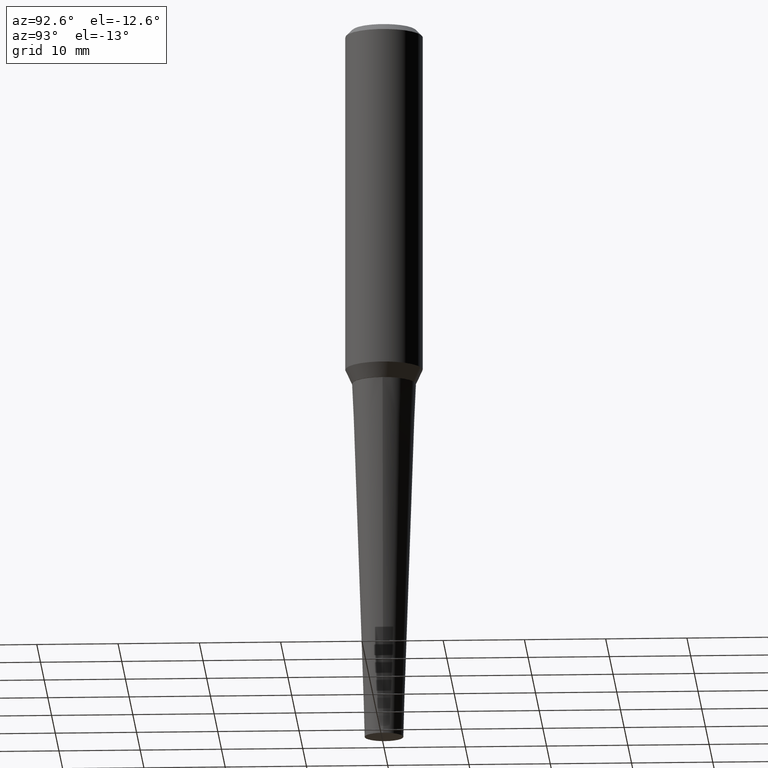
[diagram: clean part render]
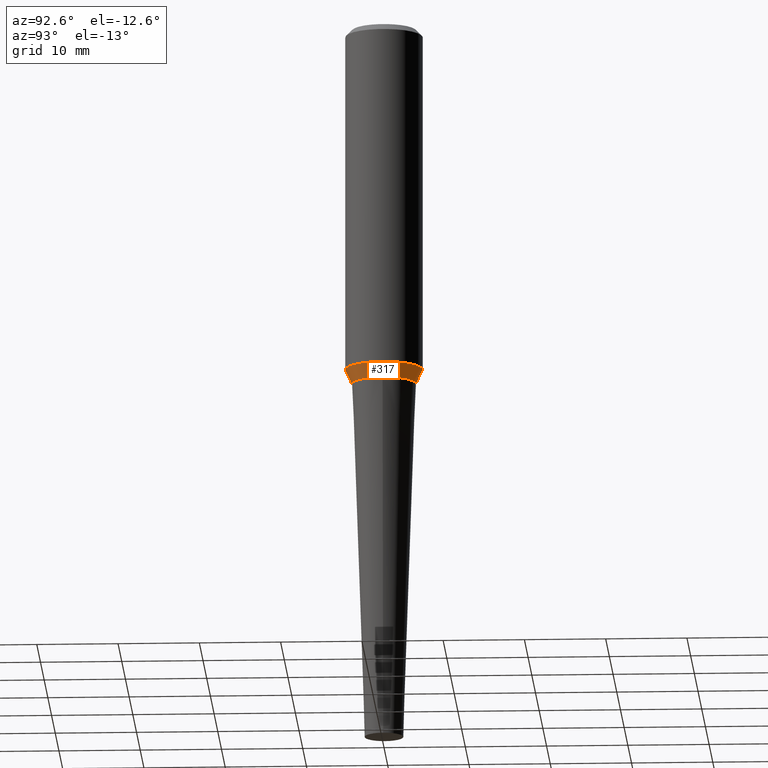
[diagram: same view with one face highlighted and labeled with its STEP entity id]
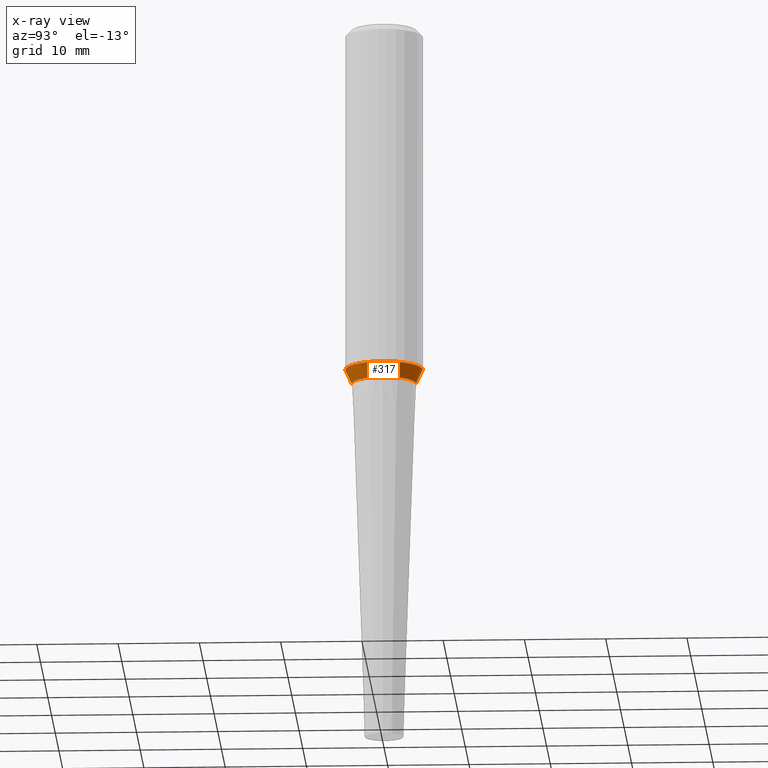
[diagram: x-ray of the same camera — body ghosted, the highlighted face saturated]
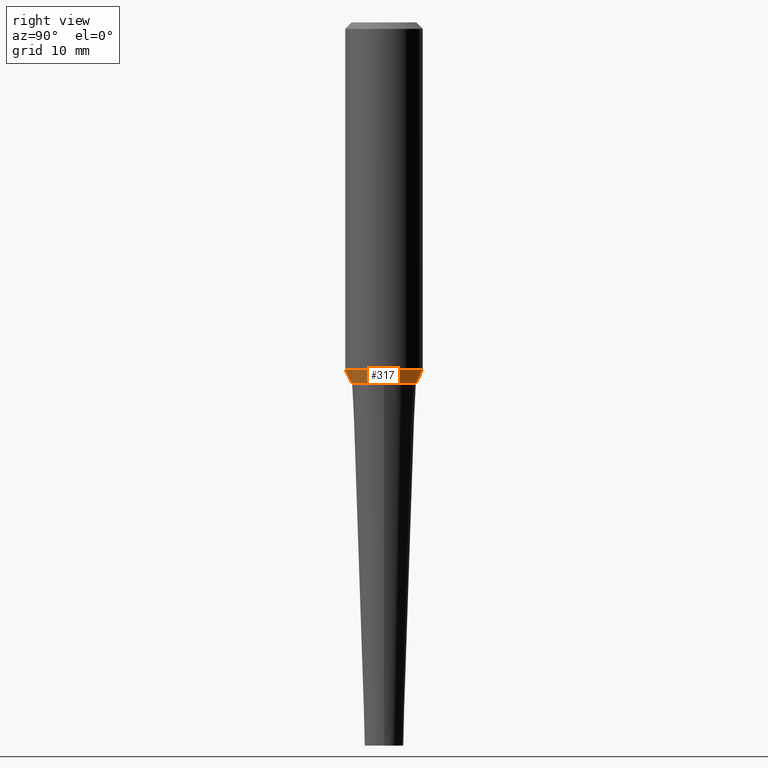
[diagram: same view with one face highlighted and labeled with its STEP entity id]
A machine part, auxiliary view. The second image highlights one B-rep face of the part: STEP entity #317.
The next image is the same camera in x-ray: the body ghosted, the highlighted face saturated — about 0% of this face is hidden behind the body in this view.
A second angle (right view) of the same face is appended — the face is thin or edge-on in the first view.
In plain terms, the highlighted conical surface has half-angle 25 deg.
Its self-contained STEP definition (entity closure, byte-faithful):
#3 = EDGE_CURVE ( 'NONE', #72, #51, #289, .T. ) ;
#13 = CARTESIAN_POINT ( 'NONE',  ( -1.084441645997670835E-15, -0.1552982159654152650, -1.749063130645136077 ) ) ;
#16 = DIRECTION ( 'NONE',  ( -2.951127548643978022E-15, -0.4226182617406972208, 0.9063077870366510469 ) ) ;
#47 = CARTESIAN_POINT ( 'NONE',  ( -1.084441645997671229E-15, -0.1552982159654153482, -1.749063130645136077 ) ) ;
#51 = VERTEX_POINT ( 'NONE', #198 ) ;
#72 = VERTEX_POINT ( 'NONE', #202 ) ;
#84 = EDGE_CURVE ( 'NONE', #248, #72, #220, .T. ) ;
#86 = EDGE_LOOP ( 'NONE', ( #182, #379, #188, #212 ) ) ;
#106 = DIRECTION ( 'NONE',  ( -2.676116305263811806E-29, 3.161180992522094064E-15, 1.000000000000000000 ) ) ;
#118 = EDGE_CURVE ( 'NONE', #133, #51, #201, .T. ) ;
#120 = AXIS2_PLACEMENT_3D ( 'NONE', #237, #241, #371 ) ;
#125 = AXIS2_PLACEMENT_3D ( 'NONE', #168, #106, #355 ) ;
#133 = VERTEX_POINT ( 'NONE', #318 ) ;
#138 = CARTESIAN_POINT ( 'NONE',  ( 1.103460192307291292E-15, 0.1552982159654033023, -1.749063130645137187 ) ) ;
#168 = CARTESIAN_POINT ( 'NONE',  ( 4.340898120008478024E-29, -6.015715547188041280E-15, -1.749063130645136743 ) ) ;
#182 = ORIENTED_EDGE ( 'NONE', *, *, #84, .T. ) ;
#188 = ORIENTED_EDGE ( 'NONE', *, *, #118, .F. ) ;
#192 = DIRECTION ( 'NONE',  ( -6.982962677686266711E-15, -1.000000000000000000, 2.913971193241881555E-15 ) ) ;
#198 = CARTESIAN_POINT ( 'NONE',  ( 1.332267629550207570E-15, 0.1874999999999941436, -1.680006181930203457 ) ) ;
#201 = CIRCLE ( 'NONE', #243, 0.1874999999999999445 ) ;
#202 = CARTESIAN_POINT ( 'NONE',  ( 1.103460192307291686E-15, 0.1552982159654033856, -1.749063130645137187 ) ) ;
#204 = CARTESIAN_POINT ( 'NONE',  ( 4.156093693560677196E-29, -5.797414033508819911E-15, -1.680006181930203013 ) ) ;
#210 = EDGE_CURVE ( 'NONE', #248, #133, #335, .T. ) ;
#212 = ORIENTED_EDGE ( 'NONE', *, *, #210, .F. ) ;
#220 = CIRCLE ( 'NONE', #125, 0.1552982159654093253 ) ;
#229 = CONICAL_SURFACE ( 'NONE', #120, 0.1552982159654093253, 0.4363323129985830495 ) ;
#237 = CARTESIAN_POINT ( 'NONE',  ( 4.340898120008478024E-29, -6.015715547188041280E-15, -1.749063130645136743 ) ) ;
#241 = DIRECTION ( 'NONE',  ( -2.676116305263811806E-29, 3.161180992522094064E-15, 1.000000000000000000 ) ) ;
#243 = AXIS2_PLACEMENT_3D ( 'NONE', #204, #263, #192 ) ;
#248 = VERTEX_POINT ( 'NONE', #13 ) ;
#263 = DIRECTION ( 'NONE',  ( -2.676116305263811806E-29, 3.161180992522094064E-15, 1.000000000000000000 ) ) ;
#289 = LINE ( 'NONE', #138, #292 ) ;
#292 = VECTOR ( 'NONE', #391, 39.37007874015748143 ) ;
#317 = ADVANCED_FACE ( 'NONE', ( #368 ), #229, .T. ) ;
#318 = CARTESIAN_POINT ( 'NONE',  ( -1.309305502066133001E-15, -0.1875000000000057454, -1.680006181930202347 ) ) ;
#335 = LINE ( 'NONE', #47, #362 ) ;
#355 = DIRECTION ( 'NONE',  ( -6.982962677686265133E-15, -1.000000000000000000, 3.518196235136077858E-15 ) ) ;
#362 = VECTOR ( 'NONE', #16, 39.37007874015748143 ) ;
#368 = FACE_OUTER_BOUND ( 'NONE', #86, .T. ) ;
#371 = DIRECTION ( 'NONE',  ( -6.982962677686265133E-15, -1.000000000000000000, 3.518196235136077858E-15 ) ) ;
#379 = ORIENTED_EDGE ( 'NONE', *, *, #3, .T. ) ;
#391 = DIRECTION ( 'NONE',  ( 3.002883358794126101E-15, 0.4226182617407029940, 0.9063077870366483824 ) ) ;